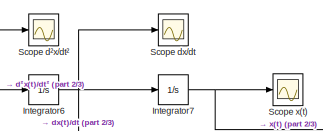
[diagram: root canvas - part 1/3, top center region]
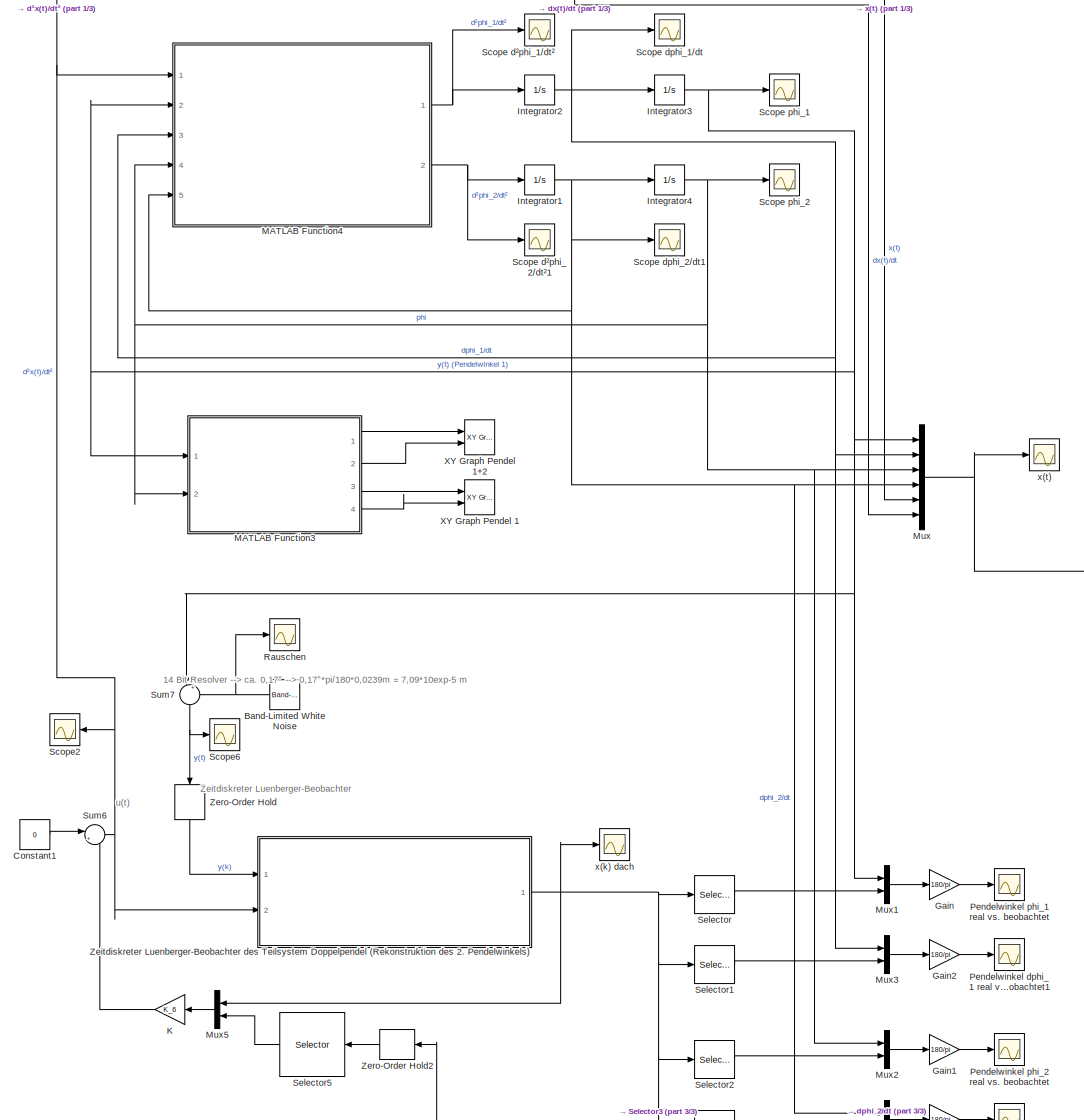
[diagram: root canvas - part 2/3, most of the canvas]
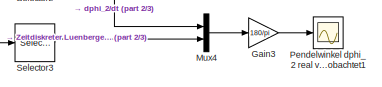
[diagram: root canvas - part 3/3, bottom right region]
MODEL slx_d743c931b62e
KIND model
CONFIG AbsTol = auto
CONFIG FixedStep = 0.001
CONFIG InitFcn = Rueckfuervektor_Beobachter_Doppelpendel
CONFIG MaxStep = auto
CONFIG MinStep = auto
CONFIG PreLoadFcn = l_1 = 0.194;\nl_2 = 0.1855;\nm_w = 0.8101;\nm_1 = 0.0313;\nm_2 = 0.0313;\nm_3 = 0.0308;\ndp_1 = 0.00045; %0.001;\ndp_2 = 0.00045;\nd_m = 0.0005;\nr = 0.011935;\nJ_Motor = 0.0000462;
CONFIG RelTol = 1e-3
CONFIG SampleTimeConstraint = Unconstrained
CONFIG Solver = ode4
CONFIG SolverMode = Auto
CONFIG SolverName = ode4
CONFIG StartTime = 0.0
CONFIG StopTime = 60.0
BLOCK [Reference] Band-Limited White Noise  REF=simulink/Sources/Band-Limited
White Noise
  Ports = [0, 1]
  SourceBlock = simulink/Sources/Band-Limited\nWhite Noise
  SourceType = Band-Limited White Noise.
BLOCK [Constant] Constant1
  Value = 0
BLOCK [Gain] Gain
  Gain = 180/pi
  OutDataTypeStr = Inherit: Inherit via internal rule
  ParamDataTypeStr = Inherit: Inherit via internal rule
  SaturateOnIntegerOverflow = off
BLOCK [Gain] Gain1
  Gain = 180/pi
  OutDataTypeStr = Inherit: Inherit via internal rule
  ParamDataTypeStr = Inherit: Inherit via internal rule
  SaturateOnIntegerOverflow = off
BLOCK [Gain] Gain2
  Gain = 180/pi
  OutDataTypeStr = Inherit: Inherit via internal rule
  ParamDataTypeStr = Inherit: Inherit via internal rule
  SaturateOnIntegerOverflow = off
BLOCK [Gain] Gain3
  Gain = 180/pi
  OutDataTypeStr = Inherit: Inherit via internal rule
  ParamDataTypeStr = Inherit: Inherit via internal rule
  SaturateOnIntegerOverflow = off
BLOCK [Integrator] Integrator1
  Ports = [1, 1]
BLOCK [Integrator] Integrator2
  Ports = [1, 1]
BLOCK [Integrator] Integrator3
  Ports = [1, 1]
BLOCK [Integrator] Integrator4
  InitialCondition = 0.0174
  Ports = [1, 1]
BLOCK [Integrator] Integrator6
  Ports = [1, 1]
BLOCK [Integrator] Integrator7
  Ports = [1, 1]
BLOCK [Gain] K
  Gain = K_6
  Multiplication = Matrix(K*u) (u vector)
  OutDataTypeStr = Inherit: Inherit via internal rule
  ParamDataTypeStr = Inherit: Inherit via internal rule
  SampleTime = T
  SaturateOnIntegerOverflow = off
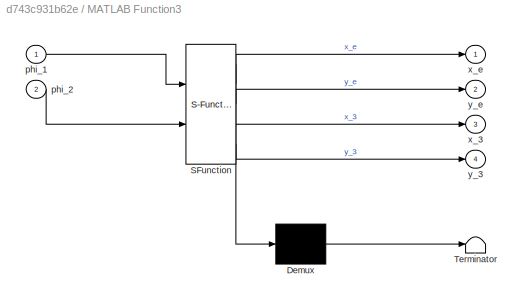
BLOCK [SubSystem] MATLAB Function3
  Commented = on
  ErrorFcn = Stateflow.Translate.translate
  PermitHierarchicalResolution = ExplicitOnly
  Ports = [2, 4]
  RequestExecContextInheritance = off
  SFBlockType = MATLAB Function
  TreatAsAtomicUnit = on
  Variant = off
BLOCK [Demux] MATLAB Function3/ Demux 
  Outputs = 1
  Ports = [1, 1]
BLOCK [S-Function] MATLAB Function3/ SFunction 
  EnableBusSupport = on
  FunctionName = sf_sfun
  Parameters = l_1,l_2
  PortCounts = [2 5]
  Ports = [2, 5]
  SFunctionDeploymentMode = off
  Tag = Stateflow S-Function Doppelpendel 3
BLOCK [Terminator] MATLAB Function3/ Terminator 
BLOCK [Inport] MATLAB Function3/phi_1
  IconDisplay = Port number
BLOCK [Inport] MATLAB Function3/phi_2
  IconDisplay = Port number
  Port = 2
BLOCK [Outport] MATLAB Function3/x_3
  IconDisplay = Port number
  Port = 3
BLOCK [Outport] MATLAB Function3/x_e
  IconDisplay = Port number
BLOCK [Outport] MATLAB Function3/y_3
  IconDisplay = Port number
  Port = 4
BLOCK [Outport] MATLAB Function3/y_e
  IconDisplay = Port number
  Port = 2
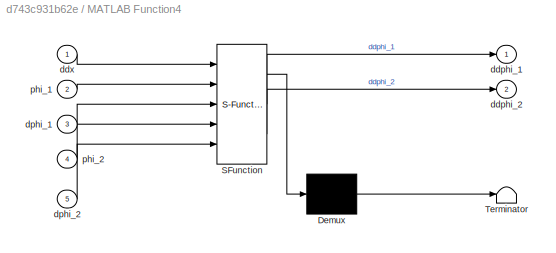
BLOCK [SubSystem] MATLAB Function4
  ErrorFcn = Stateflow.Translate.translate
  PermitHierarchicalResolution = ExplicitOnly
  Ports = [5, 2]
  RequestExecContextInheritance = off
  SFBlockType = MATLAB Function
  TreatAsAtomicUnit = on
  Variant = off
BLOCK [Demux] MATLAB Function4/ Demux 
  Outputs = 1
  Ports = [1, 1]
BLOCK [S-Function] MATLAB Function4/ SFunction 
  EnableBusSupport = on
  FunctionName = sf_sfun
  Parameters = dp_1,dp_2,g,l_1,l_2,m_1,m_2,m_3
  PortCounts = [5 3]
  Ports = [5, 3]
  SFunctionDeploymentMode = off
  Tag = Stateflow S-Function Doppelpendel 4
BLOCK [Terminator] MATLAB Function4/ Terminator 
BLOCK [Outport] MATLAB Function4/ddphi_1
  IconDisplay = Port number
BLOCK [Outport] MATLAB Function4/ddphi_2
  IconDisplay = Port number
  Port = 2
BLOCK [Inport] MATLAB Function4/ddx
  IconDisplay = Port number
BLOCK [Inport] MATLAB Function4/dphi_1
  IconDisplay = Port number
  Port = 3
BLOCK [Inport] MATLAB Function4/dphi_2
  IconDisplay = Port number
  Port = 5
BLOCK [Inport] MATLAB Function4/phi_1
  IconDisplay = Port number
  Port = 2
BLOCK [Inport] MATLAB Function4/phi_2
  IconDisplay = Port number
  Port = 4
BLOCK [Mux] Mux
  DisplayOption = bar
  Inputs = 6
  Ports = [6, 1]
BLOCK [Mux] Mux1
  DisplayOption = bar
  Inputs = 2
  Ports = [2, 1]
BLOCK [Mux] Mux2
  DisplayOption = bar
  Inputs = 2
  Ports = [2, 1]
BLOCK [Mux] Mux3
  DisplayOption = bar
  Inputs = 2
  Ports = [2, 1]
BLOCK [Mux] Mux4
  DisplayOption = bar
  Inputs = 2
  Ports = [2, 1]
BLOCK [Mux] Mux5
  DisplayOption = bar
  Inputs = 2
  Ports = [2, 1]
BLOCK [Scope] Pendelwinkel dphi_1 real vs. beobachtet1
  Ports = [1]
  ScopeSpecificationString = C++SS(StrPVP('Location','[9, 58, 953, 1033]'),StrPVP('Open','off'),MxPVP('AxesTitles',24,'struct(''axes1'',''%<SignalLabel>'')'),MxPVP('ScopeGraphics',28,'struct(''FigureColor'',''[0.501960784313725 0.501960784313725 0.501960784313725]'',''AxesColor'',''[0 0 0]'',''AxesTickColor'',''[1 1 1]'',''LineColors'',''[1 1 0;1 0 1;0 1 1;1 0 0;0 1 0;0 0 1]'',''LineStyles'',''-|--|-|-|-|-'',''LineWidths'',''...<+307ch>
BLOCK [Scope] Pendelwinkel dphi_2 real vs. beobachtet1
  Ports = [1]
  ScopeSpecificationString = C++SS(StrPVP('Location','[968, 62, 1912, 1037]'),StrPVP('Open','off'),MxPVP('AxesTitles',24,'struct(''axes1'',''%<SignalLabel>'')'),MxPVP('ScopeGraphics',28,'struct(''FigureColor'',''[0.501960784313725 0.501960784313725 0.501960784313725]'',''AxesColor'',''[0 0 0]'',''AxesTickColor'',''[1 1 1]'',''LineColors'',''[1 1 0;1 0 1;0 1 1;1 0 0;0 1 0;0 0 1]'',''LineStyles'',''-|--|-|-|-|-'',''LineWidths''...<+307ch>
BLOCK [Scope] Pendelwinkel phi_1 real vs. beobachtet
  Ports = [1]
  ScopeSpecificationString = Simulink.scopes.TimeScopeBlockCfg('CurrentConfiguration', extmgr.ConfigurationSet(extmgr.Configuration('Core','General UI',true,'FigureColor',[0.501960784313725 0.501960784313725 0.501960784313725]),extmgr.Configuration('Core','Source UI',true),extmgr.Configuration('Sources','WiredSimulink',true,'DataLoggingVariableName','ScopeData15','DataLoggingSaveFormat','Array','DataLoggingDecimation','1','Da...<+2636ch>
BLOCK [Scope] Pendelwinkel phi_2 real vs. beobachtet
  Ports = [1]
  ScopeSpecificationString = Simulink.scopes.TimeScopeBlockCfg('CurrentConfiguration', extmgr.ConfigurationSet(extmgr.Configuration('Core','General UI',true,'FigureColor',[0.501960784313725 0.501960784313725 0.501960784313725]),extmgr.Configuration('Core','Source UI',true),extmgr.Configuration('Sources','WiredSimulink',true,'DataLoggingVariableName','ScopeData24','DataLoggingSaveFormat','Array','DataLoggingDecimation','1','Da...<+2680ch>
BLOCK [Scope] Rauschen
  Ports = [1]
  ScopeSpecificationString = C++SS(StrPVP('Location','[1, 48, 1921, 1039]'),StrPVP('Open','off'),MxPVP('AxesTitles',24,'struct(''axes1'',''%<SignalLabel>'')'),MxPVP('ScopeGraphics',28,'struct(''FigureColor'',''[0.5 0.5 0.5]'',''AxesColor'',''[0 0 0]'',''AxesTickColor'',''[1 1 1]'',''LineColors'',''[1 1 0;1 0 1;0 1 1;1 0 0;0 1 0;0 0 1]'',''LineStyles'',''-|-|-|-|-|-'',''LineWidths'',''[0.5 0.5 0.5 0.5 0.5 0.5]'',''MarkerStyles...<+272ch>
BLOCK [Scope] Scope dphi_1//dt
  Ports = [1]
  ScopeSpecificationString = C++SS(StrPVP('Location','[19, 358, 330, 624]'),StrPVP('Open','off'),MxPVP('AxesTitles',24,'struct(''axes1'',''%<SignalLabel>'')'),MxPVP('ScopeGraphics',28,'struct(''FigureColor'',''[0.5 0.5 0.5]'',''AxesColor'',''[0 0 0]'',''AxesTickColor'',''[1 1 1]'',''LineColors'',''[1 1 0;1 0 1;0 1 1;1 0 0;0 1 0;0 0 1]'',''LineStyles'',''-|-|-|-|-|-'',''LineWidths'',''[0.5 0.5 0.5 0.5 0.5 0.5]'',''MarkerStyles...<+224ch>
BLOCK [Scope] Scope dphi_2//dt1
  Ports = [1]
  ScopeSpecificationString = C++SS(StrPVP('Location','[1, 48, 1921, 1039]'),StrPVP('Open','off'),StrPVP('ZoomMode','yonly'),MxPVP('AxesTitles',24,'struct(''axes1'',''%<SignalLabel>'')'),MxPVP('ScopeGraphics',28,'struct(''FigureColor'',''[0.5 0.5 0.5]'',''AxesColor'',''[0 0 0]'',''AxesTickColor'',''[1 1 1]'',''LineColors'',''[1 1 0;1 0 1;0 1 1;1 0 0;0 1 0;0 0 1]'',''LineStyles'',''-|-|-|-|-|-'',''LineWidths'',''[0.5 0.5 0.5 0....<+219ch>
BLOCK [Scope] Scope dx//dt
  Ports = [1]
  ScopeSpecificationString = C++SS(StrPVP('Location','[19, 358, 330, 624]'),StrPVP('Open','off'),MxPVP('AxesTitles',24,'struct(''axes1'',''%<SignalLabel>'')'),MxPVP('ScopeGraphics',28,'struct(''FigureColor'',''[0.5 0.5 0.5]'',''AxesColor'',''[0 0 0]'',''AxesTickColor'',''[1 1 1]'',''LineColors'',''[1 1 0;1 0 1;0 1 1;1 0 0;0 1 0;0 0 1]'',''LineStyles'',''-|-|-|-|-|-'',''LineWidths'',''[0.5 0.5 0.5 0.5 0.5 0.5]'',''MarkerStyles...<+268ch>
BLOCK [Scope] Scope d²phi_1//dt²
  Ports = [1]
  ScopeSpecificationString = C++SS(StrPVP('Location','[15, 635, 339, 874]'),StrPVP('Open','off'),MxPVP('AxesTitles',24,'struct(''axes1'',''%<SignalLabel>'')'),MxPVP('ScopeGraphics',28,'struct(''FigureColor'',''[0.5 0.5 0.5]'',''AxesColor'',''[0 0 0]'',''AxesTickColor'',''[1 1 1]'',''LineColors'',''[1 1 0;1 0 1;0 1 1;1 0 0;0 1 0;0 0 1]'',''LineStyles'',''-|-|-|-|-|-'',''LineWidths'',''[0.5 0.5 0.5 0.5 0.5 0.5]'',''MarkerStyles...<+224ch>
BLOCK [Scope] Scope d²phi_2//dt²1
  Ports = [1]
  ScopeSpecificationString = C++SS(StrPVP('Location','[15, 635, 339, 874]'),StrPVP('Open','off'),MxPVP('AxesTitles',24,'struct(''axes1'',''%<SignalLabel>'')'),MxPVP('ScopeGraphics',28,'struct(''FigureColor'',''[0.5 0.5 0.5]'',''AxesColor'',''[0 0 0]'',''AxesTickColor'',''[1 1 1]'',''LineColors'',''[1 1 0;1 0 1;0 1 1;1 0 0;0 1 0;0 0 1]'',''LineStyles'',''-|-|-|-|-|-'',''LineWidths'',''[0.5 0.5 0.5 0.5 0.5 0.5]'',''MarkerStyles...<+224ch>
BLOCK [Scope] Scope d²x//dt²
  Ports = [1]
  ScopeSpecificationString = C++SS(StrPVP('Location','[10, 60, 1930, 1051]'),StrPVP('Open','off'),MxPVP('AxesTitles',24,'struct(''axes1'',''%<SignalLabel>'')'),MxPVP('ScopeGraphics',28,'struct(''FigureColor'',''[0.5 0.5 0.5]'',''AxesColor'',''[0 0 0]'',''AxesTickColor'',''[1 1 1]'',''LineColors'',''[1 1 0;1 0 1;0 1 1;1 0 0;0 1 0;0 0 1]'',''LineStyles'',''-|-|-|-|-|-'',''LineWidths'',''[0.5 0.5 0.5 0.5 0.5 0.5]'',''MarkerStyle...<+267ch>
BLOCK [Scope] Scope phi_1
  Ports = [1]
  ScopeSpecificationString = Simulink.scopes.TimeScopeBlockCfg('CurrentConfiguration', extmgr.ConfigurationSet(extmgr.Configuration('Core','General UI',true),extmgr.Configuration('Core','Source UI',true),extmgr.Configuration('Sources','WiredSimulink',true,'DataLoggingVariableName','ScopeData1','DataLoggingSaveFormat','Array','DataLoggingDecimation','1','DataLoggingDecimateData',true),extmgr.Configuration('Visuals','Time Domai...<+1670ch>
BLOCK [Scope] Scope phi_2
  Ports = [1]
  ScopeSpecificationString = Simulink.scopes.TimeScopeBlockCfg('CurrentConfiguration', extmgr.ConfigurationSet(extmgr.Configuration('Core','General UI',true),extmgr.Configuration('Core','Source UI',true),extmgr.Configuration('Sources','WiredSimulink',true,'DataLoggingVariableName','ScopeData3','DataLoggingSaveFormat','Array','DataLoggingDecimation','1','DataLoggingDecimateData',true),extmgr.Configuration('Visuals','Time Domai...<+1645ch>
BLOCK [Scope] Scope x(t)
  Ports = [1]
  ScopeSpecificationString = Simulink.scopes.TimeScopeBlockCfg('CurrentConfiguration', extmgr.ConfigurationSet(extmgr.Configuration('Core','General UI',true),extmgr.Configuration('Core','Source UI',true),extmgr.Configuration('Sources','WiredSimulink',true,'DataLoggingVariableName','ScopeData7','DataLoggingSaveFormat','Array','DataLoggingDecimation','1','DataLoggingDecimateData',true),extmgr.Configuration('Visuals','Time Domai...<+1608ch>
BLOCK [Scope] Scope2
  Ports = [1]
  ScopeSpecificationString = C++SS(StrPVP('Location','[1, 48, 1921, 1039]'),StrPVP('Open','off'),StrPVP('ZoomMode','yonly'),MxPVP('AxesTitles',24,'struct(''axes1'',''%<SignalLabel>'')'),MxPVP('ScopeGraphics',28,'struct(''FigureColor'',''[0.5 0.5 0.5]'',''AxesColor'',''[0 0 0]'',''AxesTickColor'',''[1 1 1]'',''LineColors'',''[1 1 0;1 0 1;0 1 1;1 0 0;0 1 0;0 0 1]'',''LineStyles'',''-|-|-|-|-|-'',''LineWidths'',''[0.5 0.5 0.5 0....<+297ch>
BLOCK [Scope] Scope6
  Ports = [1]
  ScopeSpecificationString = C++SS(StrPVP('Location','[10, 60, 1930, 1051]'),StrPVP('Open','off'),MxPVP('AxesTitles',24,'struct(''axes1'',''%<SignalLabel>'')'),MxPVP('ScopeGraphics',28,'struct(''FigureColor'',''[0.5 0.5 0.5]'',''AxesColor'',''[0 0 0]'',''AxesTickColor'',''[1 1 1]'',''LineColors'',''[1 1 0;1 0 1;0 1 1;1 0 0;0 1 0;0 0 1]'',''LineStyles'',''-|-|-|-|-|-'',''LineWidths'',''[0.5 0.5 0.5 0.5 0.5 0.5]'',''MarkerStyle...<+269ch>
BLOCK [Selector] Selector
  IndexOptions = Index vector (dialog)
  Indices = [1]
  InputPortWidth = 4
  OutputSizes = 1
  Ports = [1, 1]
BLOCK [Selector] Selector1
  IndexOptions = Index vector (dialog)
  Indices = [2]
  InputPortWidth = 4
  OutputSizes = 1
  Ports = [1, 1]
BLOCK [Selector] Selector2
  IndexOptions = Index vector (dialog)
  Indices = [3]
  InputPortWidth = 4
  OutputSizes = 1
  Ports = [1, 1]
BLOCK [Selector] Selector3
  IndexOptions = Index vector (dialog)
  Indices = [4]
  InputPortWidth = 4
  OutputSizes = 1
  Ports = [1, 1]
BLOCK [Selector] Selector5
  IndexOptions = Index vector (dialog)
  Indices = [5 6]
  InputPortWidth = 6
  OutputSizes = 1
  Ports = [1, 1]
BLOCK [Sum] Sum6
  IconShape = round
  InputSameDT = off
  Inputs = |+-
  OutDataTypeStr = Inherit: Inherit via internal rule
  Ports = [2, 1]
  SampleTime = T
  SaturateOnIntegerOverflow = off
BLOCK [Sum] Sum7
  IconShape = round
  InputSameDT = off
  Inputs = |++
  OutDataTypeStr = Inherit: Inherit via internal rule
  Ports = [2, 1]
  SaturateOnIntegerOverflow = off
BLOCK [Reference] XY Graph Pendel 1  REF=simulink/Sinks/XY Graph
  Commented = on
  Ports = [2]
  SourceBlock = simulink/Sinks/XY Graph
  SourceType = XY scope.
BLOCK [Reference] XY Graph Pendel 1+2  REF=simulink/Sinks/XY Graph
  Commented = on
  Ports = [2]
  SourceBlock = simulink/Sinks/XY Graph
  SourceType = XY scope.
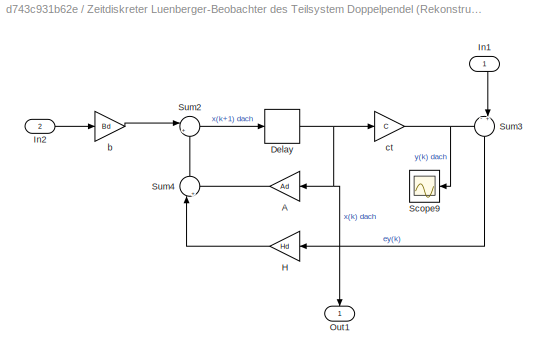
BLOCK [SubSystem] Zeitdiskreter Luenberger-Beobachter des Teilsystem Doppelpendel (Rekonstruktion des 2. Pendelwinkels)
  Ports = [2, 1]
  RequestExecContextInheritance = off
  Variant = off
BLOCK [Gain] Zeitdiskreter Luenberger-Beobachter des Teilsystem Doppelpendel (Rekonstruktion des 2. Pendelwinkels)/A
  Gain = Ad
  Multiplication = Matrix(K*u) (u vector)
  OutDataTypeStr = Inherit: Inherit via internal rule
  ParamDataTypeStr = Inherit: Inherit via internal rule
  SampleTime = T
  SaturateOnIntegerOverflow = off
BLOCK [Delay] Zeitdiskreter Luenberger-Beobachter des Teilsystem Doppelpendel (Rekonstruktion des 2. Pendelwinkels)/Delay
  DelayLength = 1
  InputPortMap = u0
  Ports = [1, 1]
  SampleTime = T
BLOCK [Gain] Zeitdiskreter Luenberger-Beobachter des Teilsystem Doppelpendel (Rekonstruktion des 2. Pendelwinkels)/H
  Gain = Hd
  Multiplication = Matrix(K*u)
  OutDataTypeStr = Inherit: Inherit via internal rule
  ParamDataTypeStr = Inherit: Inherit via internal rule
  SampleTime = T
  SaturateOnIntegerOverflow = off
BLOCK [Inport] Zeitdiskreter Luenberger-Beobachter des Teilsystem Doppelpendel (Rekonstruktion des 2. Pendelwinkels)/In1
  IconDisplay = Port number
BLOCK [Inport] Zeitdiskreter Luenberger-Beobachter des Teilsystem Doppelpendel (Rekonstruktion des 2. Pendelwinkels)/In2
  IconDisplay = Port number
  Port = 2
BLOCK [Outport] Zeitdiskreter Luenberger-Beobachter des Teilsystem Doppelpendel (Rekonstruktion des 2. Pendelwinkels)/Out1
  IconDisplay = Port number
BLOCK [Scope] Zeitdiskreter Luenberger-Beobachter des Teilsystem Doppelpendel (Rekonstruktion des 2. Pendelwinkels)/Scope9
  Ports = [1]
  ScopeSpecificationString = C++SS(StrPVP('Location','[1, 48, 1921, 1039]'),StrPVP('Open','off'),MxPVP('AxesTitles',24,'struct(''axes1'',''%<SignalLabel>'')'),MxPVP('ScopeGraphics',28,'struct(''FigureColor'',''[0.5 0.5 0.5]'',''AxesColor'',''[0 0 0]'',''AxesTickColor'',''[1 1 1]'',''LineColors'',''[1 1 0;1 0 1;0 1 1;1 0 0;0 1 0;0 0 1]'',''LineStyles'',''-|-|-|-|-|-'',''LineWidths'',''[0.5 0.5 0.5 0.5 0.5 0.5]'',''MarkerStyles...<+270ch>
BLOCK [Sum] Zeitdiskreter Luenberger-Beobachter des Teilsystem Doppelpendel (Rekonstruktion des 2. Pendelwinkels)/Sum2
  IconShape = round
  InputSameDT = off
  Inputs = |++
  OutDataTypeStr = Inherit: Inherit via internal rule
  Ports = [2, 1]
  SampleTime = T
  SaturateOnIntegerOverflow = off
BLOCK [Sum] Zeitdiskreter Luenberger-Beobachter des Teilsystem Doppelpendel (Rekonstruktion des 2. Pendelwinkels)/Sum3
  IconShape = round
  InputSameDT = off
  Inputs = -+|
  OutDataTypeStr = Inherit: Inherit via internal rule
  Ports = [2, 1]
  SampleTime = T
  SaturateOnIntegerOverflow = off
BLOCK [Sum] Zeitdiskreter Luenberger-Beobachter des Teilsystem Doppelpendel (Rekonstruktion des 2. Pendelwinkels)/Sum4
  IconShape = round
  InputSameDT = off
  Inputs = |++
  OutDataTypeStr = Inherit: Inherit via internal rule
  Ports = [2, 1]
  SampleTime = T
  SaturateOnIntegerOverflow = off
BLOCK [Gain] Zeitdiskreter Luenberger-Beobachter des Teilsystem Doppelpendel (Rekonstruktion des 2. Pendelwinkels)/b
  Gain = Bd
  LockScale = on
  Multiplication = Matrix(K*u)
  OutDataTypeStr = Inherit: Inherit via internal rule
  ParamDataTypeStr = Inherit: Inherit via internal rule
  SampleTime = T
  SaturateOnIntegerOverflow = off
BLOCK [Gain] Zeitdiskreter Luenberger-Beobachter des Teilsystem Doppelpendel (Rekonstruktion des 2. Pendelwinkels)/ct
  Gain = C
  Multiplication = Matrix(K*u) (u vector)
  OutDataTypeStr = Inherit: Inherit via internal rule
  ParamDataTypeStr = Inherit: Inherit via internal rule
  SampleTime = T
  SaturateOnIntegerOverflow = off
BLOCK [ZeroOrderHold] Zero-Order Hold
  SampleTime = T
BLOCK [ZeroOrderHold] Zero-Order Hold2
  SampleTime = T
BLOCK [Scope] x(k) dach
  Ports = [1]
  ScopeSpecificationString = C++SS(StrPVP('Location','[966, 60, 1910, 1035]'),StrPVP('Open','off'),MxPVP('AxesTitles',24,'struct(''axes1'',''%<SignalLabel>'')'),MxPVP('ScopeGraphics',28,'struct(''FigureColor'',''[0.501960784313725 0.501960784313725 0.501960784313725]'',''AxesColor'',''[0 0 0]'',''AxesTickColor'',''[1 1 1]'',''LineColors'',''[1 1 0;1 0 1;0 1 1;1 0 0;0 1 0;0 0 1]'',''LineStyles'',''-|-|-|-|-|-'',''LineWidths'',...<+310ch>
BLOCK [Scope] x(t)
  Ports = [1]
  ScopeSpecificationString = C++SS(StrPVP('Location','[11, 60, 955, 1035]'),StrPVP('Open','off'),StrPVP('ZoomMode','yonly'),MxPVP('AxesTitles',24,'struct(''axes1'',''%<SignalLabel>'')'),MxPVP('ScopeGraphics',28,'struct(''FigureColor'',''[0.501960784313725 0.501960784313725 0.501960784313725]'',''AxesColor'',''[0 0 0]'',''AxesTickColor'',''[1 1 1]'',''LineColors'',''[1 1 0;1 0 1;0 1 1;1 0 0;0 1 0;0 0 1]'',''LineStyles'',''-|-|...<+336ch>
ANNOTATION (root): 14 Bit Resolver --> ca. 0,17° --> 0,17°*pi/180*0,0239m = 7,09*10exp-5 m
ANNOTATION (root): Zeitdiskreter Luenberger-Beobachter
ANNOTATION (root): u(t)
NET Band-Limited White Noise:1 -> Rauschen:1, Sum7:2
LINE Constant1:1 -> Sum6:1
LINE Gain1:1 -> Pendelwinkel phi_2 real vs. beobachtet:1
LINE Gain2:1 -> Pendelwinkel dphi_1 real vs. beobachtet1:1
LINE Gain3:1 -> Pendelwinkel dphi_2 real vs. beobachtet1:1
LINE Gain:1 -> Pendelwinkel phi_1 real vs. beobachtet:1
NET Integrator1:1 -> Integrator4:1, MATLAB Function4:5, Mux4:1, Mux:4, Scope dphi_2//dt1:1
NET Integrator2:1 -> Integrator3:1, MATLAB Function4:3, Mux3:1, Mux:2, Scope dphi_1//dt:1
NET Integrator3:1 -> MATLAB Function3:1, MATLAB Function4:2, Mux1:1, Mux:1, Scope phi_1:1, Sum7:1
NET Integrator4:1 -> MATLAB Function3:2, MATLAB Function4:4, Mux2:1, Mux:3, Scope phi_2:1
NET Integrator6:1 -> Integrator7:1, Mux:6, Scope dx//dt:1
NET Integrator7:1 -> Mux:5, Scope x(t):1
LINE K:1 -> Sum6:2
LINE MATLAB Function3:1 -> XY Graph Pendel 1+2:1
LINE MATLAB Function3:2 -> XY Graph Pendel 1+2:2
LINE MATLAB Function3:3 -> XY Graph Pendel 1:1
LINE MATLAB Function3:4 -> XY Graph Pendel 1:2
NET MATLAB Function4:1 -> Integrator2:1, Scope d²phi_1//dt²:1
NET MATLAB Function4:2 -> Integrator1:1, Scope d²phi_2//dt²1:1
LINE Mux1:1 -> Gain:1
LINE Mux2:1 -> Gain1:1
LINE Mux3:1 -> Gain2:1
LINE Mux4:1 -> Gain3:1
LINE Mux5:1 -> K:1
NET Mux:1 -> Zero-Order Hold2:1, x(t):1
LINE Selector1:1 -> Mux3:2
LINE Selector2:1 -> Mux2:2
LINE Selector3:1 -> Mux4:2
LINE Selector5:1 -> Mux5:2
LINE Selector:1 -> Mux1:2
NET Sum6:1 -> Integrator6:1, MATLAB Function4:1, Scope d²x//dt²:1, Scope2:1, Zeitdiskreter Luenberger-Beobachter des Teilsystem Doppelpendel (Rekonstruktion des 2. Pendelwinkels):2
NET Sum7:1 -> Scope6:1, Zero-Order Hold:1
LINE Zeitdiskreter Luenberger-Beobachter des Teilsystem Doppelpendel (Rekonstruktion des 2. Pendelwinkels)/A:1 -> Zeitdiskreter Luenberger-Beobachter des Teilsystem Doppelpendel (Rekonstruktion des 2. Pendelwinkels)/Sum4:2
NET Zeitdiskreter Luenberger-Beobachter des Teilsystem Doppelpendel (Rekonstruktion des 2. Pendelwinkels)/Delay:1 -> Zeitdiskreter Luenberger-Beobachter des Teilsystem Doppelpendel (Rekonstruktion des 2. Pendelwinkels)/A:1, Zeitdiskreter Luenberger-Beobachter des Teilsystem Doppelpendel (Rekonstruktion des 2. Pendelwinkels)/Out1:1, Zeitdiskreter Luenberger-Beobachter des Teilsystem Doppelpendel (Rekonstruktion des 2. Pendelwinkels)/ct:1
LINE Zeitdiskreter Luenberger-Beobachter des Teilsystem Doppelpendel (Rekonstruktion des 2. Pendelwinkels)/H:1 -> Zeitdiskreter Luenberger-Beobachter des Teilsystem Doppelpendel (Rekonstruktion des 2. Pendelwinkels)/Sum4:1
LINE Zeitdiskreter Luenberger-Beobachter des Teilsystem Doppelpendel (Rekonstruktion des 2. Pendelwinkels)/In1:1 -> Zeitdiskreter Luenberger-Beobachter des Teilsystem Doppelpendel (Rekonstruktion des 2. Pendelwinkels)/Sum3:2
LINE Zeitdiskreter Luenberger-Beobachter des Teilsystem Doppelpendel (Rekonstruktion des 2. Pendelwinkels)/In2:1 -> Zeitdiskreter Luenberger-Beobachter des Teilsystem Doppelpendel (Rekonstruktion des 2. Pendelwinkels)/b:1
LINE Zeitdiskreter Luenberger-Beobachter des Teilsystem Doppelpendel (Rekonstruktion des 2. Pendelwinkels)/Sum2:1 -> Zeitdiskreter Luenberger-Beobachter des Teilsystem Doppelpendel (Rekonstruktion des 2. Pendelwinkels)/Delay:1
LINE Zeitdiskreter Luenberger-Beobachter des Teilsystem Doppelpendel (Rekonstruktion des 2. Pendelwinkels)/Sum3:1 -> Zeitdiskreter Luenberger-Beobachter des Teilsystem Doppelpendel (Rekonstruktion des 2. Pendelwinkels)/H:1
LINE Zeitdiskreter Luenberger-Beobachter des Teilsystem Doppelpendel (Rekonstruktion des 2. Pendelwinkels)/Sum4:1 -> Zeitdiskreter Luenberger-Beobachter des Teilsystem Doppelpendel (Rekonstruktion des 2. Pendelwinkels)/Sum2:2
LINE Zeitdiskreter Luenberger-Beobachter des Teilsystem Doppelpendel (Rekonstruktion des 2. Pendelwinkels)/b:1 -> Zeitdiskreter Luenberger-Beobachter des Teilsystem Doppelpendel (Rekonstruktion des 2. Pendelwinkels)/Sum2:1
NET Zeitdiskreter Luenberger-Beobachter des Teilsystem Doppelpendel (Rekonstruktion des 2. Pendelwinkels)/ct:1 -> Zeitdiskreter Luenberger-Beobachter des Teilsystem Doppelpendel (Rekonstruktion des 2. Pendelwinkels)/Scope9:1, Zeitdiskreter Luenberger-Beobachter des Teilsystem Doppelpendel (Rekonstruktion des 2. Pendelwinkels)/Sum3:1
NET Zeitdiskreter Luenberger-Beobachter des Teilsystem Doppelpendel (Rekonstruktion des 2. Pendelwinkels):1 -> Mux5:1, Selector1:1, Selector2:1, Selector3:1, Selector:1, x(k) dach:1
LINE Zero-Order Hold2:1 -> Selector5:1
LINE Zero-Order Hold:1 -> Zeitdiskreter Luenberger-Beobachter des Teilsystem Doppelpendel (Rekonstruktion des 2. Pendelwinkels):1
note: NET lines group one-source signal fan-out (src -> all destinations, sorted); 1:1 wires keep LINE
CHART MATLAB Function3 states=1 transitions=1
  STATE_LABEL 'eML_blk_kernel()'
  STATE_LABEL 'SCRIPT:\nfunction [x_e,y_e,x_3,y_3] = Position_der_Pendelspitze(phi_1, phi_2, l_1, l_2)\n%#codegen\n\nx_e = - l_1*sin(phi_1) - l_2*sin(phi_2);\ny_e =   l_1*cos(phi_1) + l_2*cos(phi_2);\n\nx_3 = - l_1*sin(phi_1);\ny_3 =   l_1*cos(phi_1);'
CHART MATLAB Function4 states=1 transitions=1
  STATE_LABEL 'eML_blk_kernel()'
  STATE_LABEL 'SCRIPT:\nfunction [ddphi_1, ddphi_2] = Doppelpendel(ddx, phi_1, dphi_1, phi_2, dphi_2, l_1, l_2, g, m_1, m_2, m_3, dp_1, dp_2)\n%#codegen\n\nJ_1 = 1/12*m_1*l_1^2 + 0.00002; %% (um den Schwerpunkt)\nJ_2 = 1/12*m_2*l_2^2; %% (um den Schwerpunkt)\n\n\n% ddphi_1 = -2 / ( l_1^2*(m_1+4*m_2+4*m_3+4*J_1) ) * ( l_1*l_2*m_2*sin(phi_2-phi_2)*dphi_2^2 ...\n%                                                     + l_1*l_...<+1074ch>'
